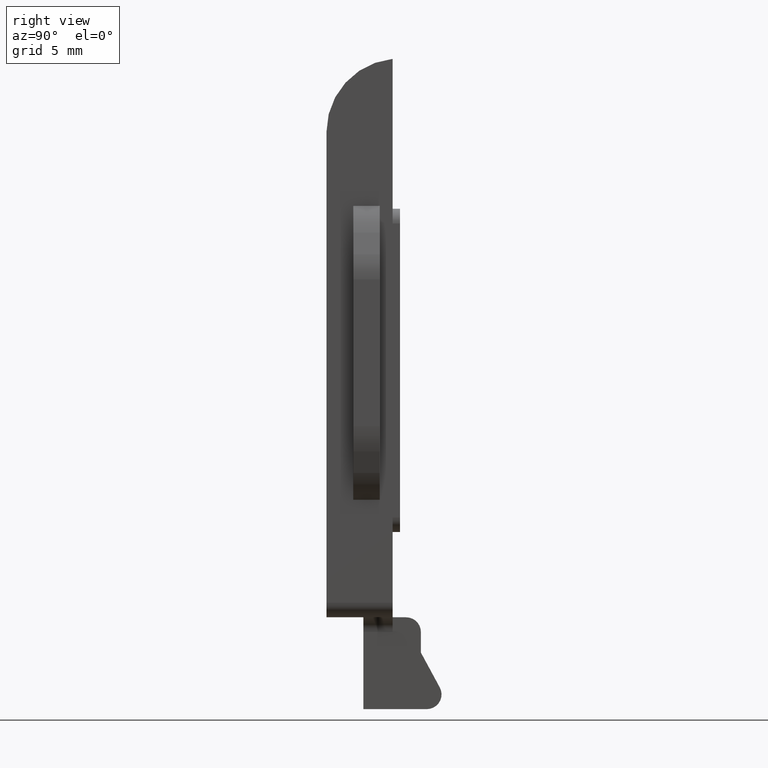
[diagram: clean part render]
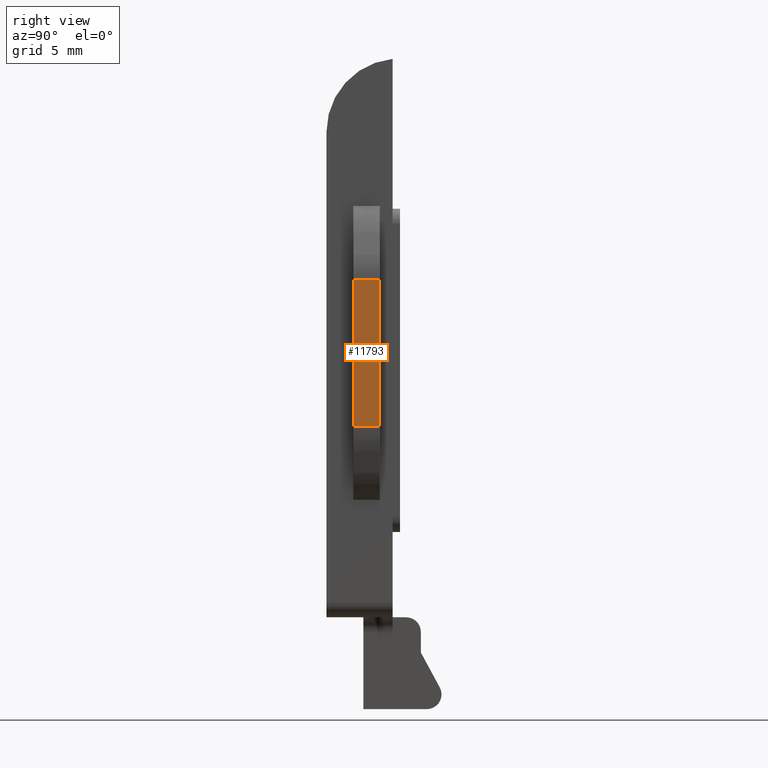
[diagram: same view with one face highlighted and labeled with its STEP entity id]
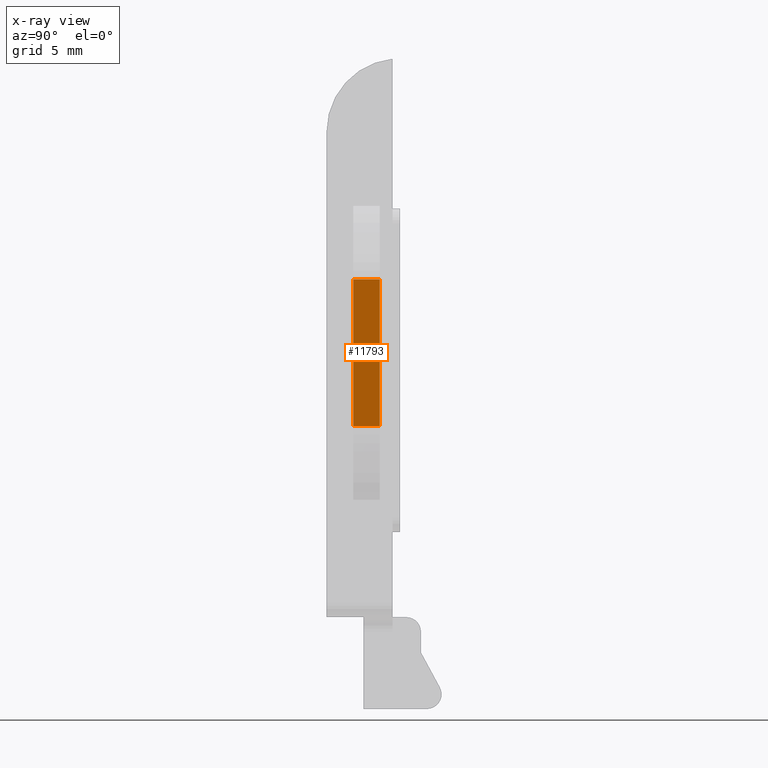
[diagram: x-ray of the same camera — body ghosted, the highlighted face saturated]
A machine part, right view. The second image highlights one B-rep face of the part: STEP entity #11793.
The next image is the same camera in x-ray: the body ghosted, the highlighted face saturated — about 0% of this face is hidden behind the body in this view.
In plain terms, the highlighted planar face has unit normal (1, 0, 0).
Its self-contained STEP definition (entity closure, byte-faithful):
#181 = DIRECTION ( 'NONE',  ( 0.000000000000000000, 0.000000000000000000, -1.000000000000000000 ) ) ;
#1519 = ORIENTED_EDGE ( 'NONE', *, *, #6705, .T. ) ;
#1910 = VECTOR ( 'NONE', #15096, 1000.000000000000000 ) ;
#3178 = DIRECTION ( 'NONE',  ( 0.000000000000000000, 0.000000000000000000, -1.000000000000000000 ) ) ;
#3430 = VERTEX_POINT ( 'NONE', #11789 ) ;
#3739 = CARTESIAN_POINT ( 'NONE',  ( 10.69999999999999929, 3.624999999999999556, 13.00285103272426213 ) ) ;
#3951 = CARTESIAN_POINT ( 'NONE',  ( 10.69999999999999929, 0.000000000000000000, 22.99714896727577695 ) ) ;
#4474 = ORIENTED_EDGE ( 'NONE', *, *, #11786, .T. ) ;
#5298 = EDGE_CURVE ( 'NONE', #3430, #5531, #11867, .T. ) ;
#5531 = VERTEX_POINT ( 'NONE', #16148 ) ;
#6369 = DIRECTION ( 'NONE',  ( -0.000000000000000000, 1.000000000000000000, 0.000000000000000000 ) ) ;
#6617 = VECTOR ( 'NONE', #6369, 1000.000000000000000 ) ;
#6705 = EDGE_CURVE ( 'NONE', #7004, #3430, #10040, .T. ) ;
#6785 = AXIS2_PLACEMENT_3D ( 'NONE', #15323, #15428, #181 ) ;
#7004 = VERTEX_POINT ( 'NONE', #10888 ) ;
#7782 = LINE ( 'NONE', #7807, #15889 ) ;
#7807 = CARTESIAN_POINT ( 'NONE',  ( 10.69999999999999929, 3.625000000000000444, 8.000000000000000000 ) ) ;
#8099 = VECTOR ( 'NONE', #3178, 1000.000000000000000 ) ;
#8224 = CARTESIAN_POINT ( 'NONE',  ( 10.69999999999999929, 1.824999999999997957, 28.00000000000000000 ) ) ;
#9755 = LINE ( 'NONE', #10179, #6617 ) ;
#9910 = ORIENTED_EDGE ( 'NONE', *, *, #5298, .T. ) ;
#10040 = LINE ( 'NONE', #3951, #1910 ) ;
#10179 = CARTESIAN_POINT ( 'NONE',  ( 10.69999999999999929, 0.000000000000000000, 13.00285103272426213 ) ) ;
#10888 = CARTESIAN_POINT ( 'NONE',  ( 10.69999999999999929, 3.624999999999998668, 22.99714896727577695 ) ) ;
#11735 = EDGE_CURVE ( 'NONE', #5531, #13355, #9755, .T. ) ;
#11786 = EDGE_CURVE ( 'NONE', #13355, #7004, #7782, .T. ) ;
#11789 = CARTESIAN_POINT ( 'NONE',  ( 10.69999999999999929, 1.824999999999997957, 22.99714896727577695 ) ) ;
#11793 = ADVANCED_FACE ( 'NONE', ( #11943 ), #15382, .T. ) ;
#11867 = LINE ( 'NONE', #8224, #8099 ) ;
#11943 = FACE_OUTER_BOUND ( 'NONE', #15733, .T. ) ;
#13355 = VERTEX_POINT ( 'NONE', #3739 ) ;
#14008 = ORIENTED_EDGE ( 'NONE', *, *, #11735, .T. ) ;
#15096 = DIRECTION ( 'NONE',  ( 0.000000000000000000, -1.000000000000000000, 0.000000000000000000 ) ) ;
#15261 = DIRECTION ( 'NONE',  ( 0.000000000000000000, -1.301042606982605321E-16, 1.000000000000000000 ) ) ;
#15323 = CARTESIAN_POINT ( 'NONE',  ( 10.69999999999999929, 0.000000000000000000, 0.000000000000000000 ) ) ;
#15382 = PLANE ( 'NONE',  #6785 ) ;
#15428 = DIRECTION ( 'NONE',  ( 1.000000000000000000, 0.000000000000000000, 0.000000000000000000 ) ) ;
#15733 = EDGE_LOOP ( 'NONE', ( #9910, #14008, #4474, #1519 ) ) ;
#15889 = VECTOR ( 'NONE', #15261, 1000.000000000000000 ) ;
#16148 = CARTESIAN_POINT ( 'NONE',  ( 10.69999999999999929, 1.824999999999997957, 13.00285103272426213 ) ) ;